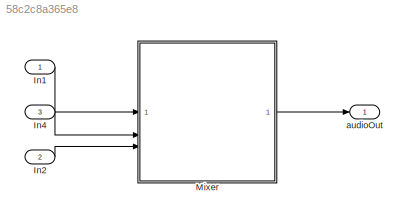
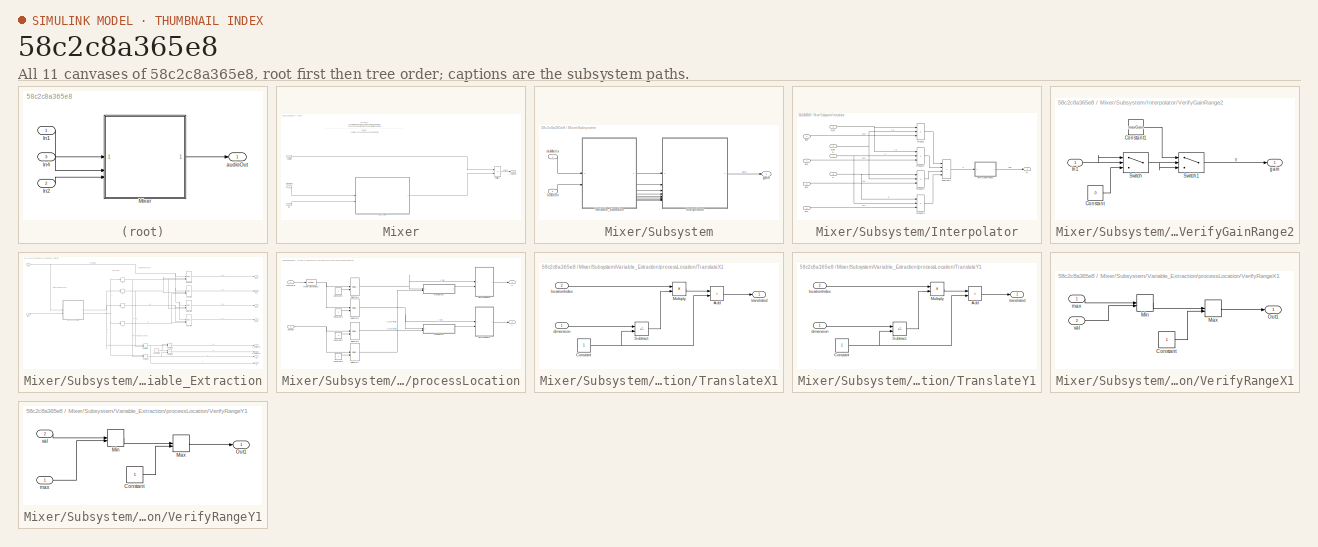
[diagram: thumbnail index - all 11 canvases of the model, root first then tree order]
MODEL slx_58c2c8a365e8
KIND library
CONFIG AbsTol = auto
CONFIG EnableMultiTasking = off
CONFIG FixedStep = auto
CONFIG MaxStep = auto
CONFIG MinStep = auto
CONFIG RelTol = 1e-3
CONFIG SampleTimeConstraint = Unconstrained
CONFIG SolverName = VariableStepAuto
CONFIG StartTime = 0.0
CONFIG StopTime = 10.0
BLOCK [Inport] In1
BLOCK [Inport] In2
  Port = 2
BLOCK [Inport] In4
  Port = 3
BLOCK [SubSystem] Mixer
BLOCK [Inport] Mixer/AudioIn
  OutDataTypeStr = single
BLOCK [Outport] Mixer/AudioOut
  VectorParamsAs1DForOutWhenUnconnected = off
BLOCK [Product] Mixer/Multiply1
  OutDataTypeStr = single
BLOCK [SubSystem] Mixer/Subsystem
BLOCK [SubSystem] Mixer/Subsystem/Interpolator
BLOCK [Product] Mixer/Subsystem/Interpolator/Product
  Inputs = 3
  OutDataTypeStr = single
BLOCK [Product] Mixer/Subsystem/Interpolator/Product1
  Inputs = 3
  OutDataTypeStr = single
BLOCK [Product] Mixer/Subsystem/Interpolator/Product2
  Inputs = 3
  OutDataTypeStr = single
BLOCK [Product] Mixer/Subsystem/Interpolator/Product3
  Inputs = 3
  OutDataTypeStr = single
BLOCK [Sum] Mixer/Subsystem/Interpolator/Subtract4
  IconShape = rectangular
  Inputs = ++++
  OutDataTypeStr = single
BLOCK [SubSystem] Mixer/Subsystem/Interpolator/VerifyGainRange2
BLOCK [Constant] Mixer/Subsystem/Interpolator/VerifyGainRange2/Constant
  Value = 0
BLOCK [Constant] Mixer/Subsystem/Interpolator/VerifyGainRange2/Constant1
  Value = maxGain
BLOCK [Inport] Mixer/Subsystem/Interpolator/VerifyGainRange2/In1
BLOCK [Switch] Mixer/Subsystem/Interpolator/VerifyGainRange2/Switch
  InputSameDT = off
  SaturateOnIntegerOverflow = off
BLOCK [Switch] Mixer/Subsystem/Interpolator/VerifyGainRange2/Switch1
  Criteria = u2 > Threshold
  InputSameDT = off
  SaturateOnIntegerOverflow = off
  Threshold = maxGain
BLOCK [Outport] Mixer/Subsystem/Interpolator/VerifyGainRange2/gain
  VectorParamsAs1DForOutWhenUnconnected = off
BLOCK [Inport] Mixer/Subsystem/Interpolator/a
  Port = 8
BLOCK [Inport] Mixer/Subsystem/Interpolator/a_inv
  Port = 5
BLOCK [Inport] Mixer/Subsystem/Interpolator/b
  Port = 7
BLOCK [Inport] Mixer/Subsystem/Interpolator/b_inv
  Port = 6
BLOCK [Outport] Mixer/Subsystem/Interpolator/g
  VectorParamsAs1DForOutWhenUnconnected = off
BLOCK [Inport] Mixer/Subsystem/Interpolator/g00
BLOCK [Inport] Mixer/Subsystem/Interpolator/g01
  Port = 2
BLOCK [Inport] Mixer/Subsystem/Interpolator/g10
  Port = 3
BLOCK [Inport] Mixer/Subsystem/Interpolator/g11
  Port = 4
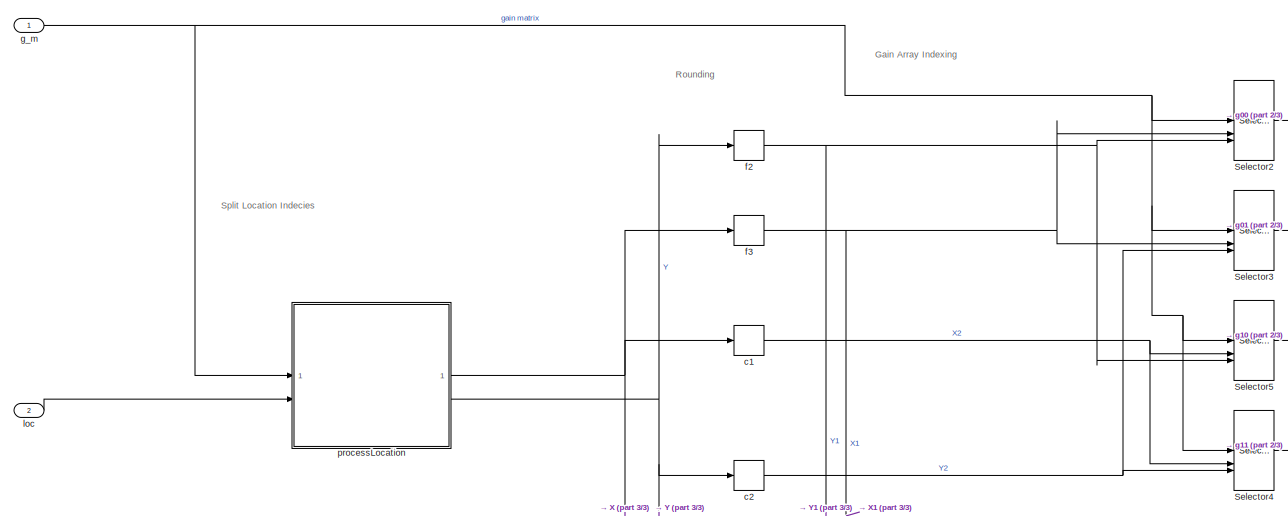
[diagram: Mixer/Subsystem/Variable_Extraction - part 1/3, central region]
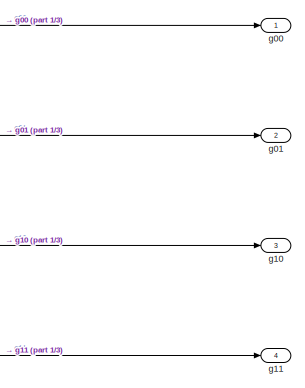
[diagram: Mixer/Subsystem/Variable_Extraction - part 2/3, middle right region]
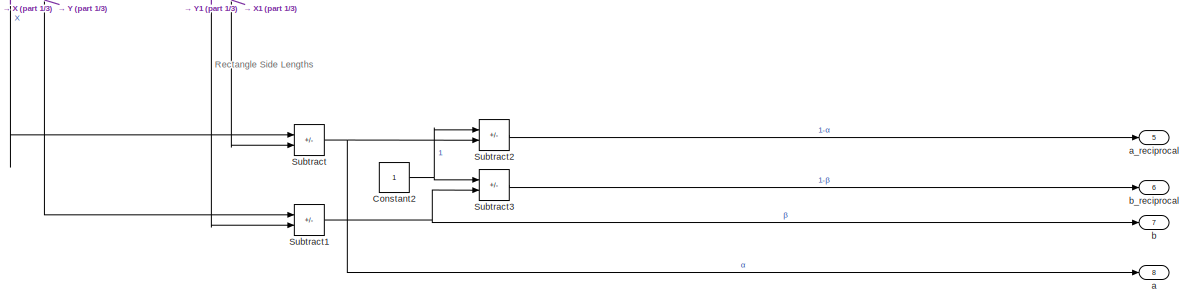
[diagram: Mixer/Subsystem/Variable_Extraction - part 3/3, bottom right region]
BLOCK [SubSystem] Mixer/Subsystem/Variable_Extraction
BLOCK [Constant] Mixer/Subsystem/Variable_Extraction/Constant2
  OutDataTypeStr = single
BLOCK [Selector] Mixer/Subsystem/Variable_Extraction/Selector2
  IndexOptions = Index vector (port),Index vector (port)
  Indices = [1 3],1
  InputPortWidth = 2
  NumberOfDimensions = 2
  OutputSizes = 1,1
BLOCK [Selector] Mixer/Subsystem/Variable_Extraction/Selector3
  IndexOptions = Index vector (port),Index vector (port)
  Indices = [1 3],1
  InputPortWidth = 2
  NumberOfDimensions = 2
  OutputSizes = 1,1
BLOCK [Selector] Mixer/Subsystem/Variable_Extraction/Selector4
  IndexOptions = Index vector (port),Index vector (port)
  Indices = [1 3],1
  InputPortWidth = 2
  NumberOfDimensions = 2
  OutputSizes = 1,1
BLOCK [Selector] Mixer/Subsystem/Variable_Extraction/Selector5
  IndexOptions = Index vector (port),Index vector (port)
  Indices = [1 3],1
  InputPortWidth = 2
  NumberOfDimensions = 2
  OutputSizes = 1,1
BLOCK [Sum] Mixer/Subsystem/Variable_Extraction/Subtract
  IconShape = rectangular
  Inputs = +-
  OutDataTypeStr = single
BLOCK [Sum] Mixer/Subsystem/Variable_Extraction/Subtract1
  IconShape = rectangular
  Inputs = +-
  OutDataTypeStr = single
BLOCK [Sum] Mixer/Subsystem/Variable_Extraction/Subtract2
  IconShape = rectangular
  Inputs = +-
  OutDataTypeStr = single
BLOCK [Sum] Mixer/Subsystem/Variable_Extraction/Subtract3
  IconShape = rectangular
  Inputs = +-
  OutDataTypeStr = single
BLOCK [Outport] Mixer/Subsystem/Variable_Extraction/a
  Port = 8
  VectorParamsAs1DForOutWhenUnconnected = off
BLOCK [Outport] Mixer/Subsystem/Variable_Extraction/a_reciprocal
  Port = 5
  VectorParamsAs1DForOutWhenUnconnected = off
BLOCK [Outport] Mixer/Subsystem/Variable_Extraction/b
  Port = 7
  VectorParamsAs1DForOutWhenUnconnected = off
BLOCK [Outport] Mixer/Subsystem/Variable_Extraction/b_reciprocal
  Port = 6
  VectorParamsAs1DForOutWhenUnconnected = off
BLOCK [Rounding] Mixer/Subsystem/Variable_Extraction/c1
  Operator = ceil
BLOCK [Rounding] Mixer/Subsystem/Variable_Extraction/c2 
  Operator = ceil
BLOCK [Rounding] Mixer/Subsystem/Variable_Extraction/f2
BLOCK [Rounding] Mixer/Subsystem/Variable_Extraction/f3
BLOCK [Outport] Mixer/Subsystem/Variable_Extraction/g00
  VectorParamsAs1DForOutWhenUnconnected = off
BLOCK [Outport] Mixer/Subsystem/Variable_Extraction/g01
  Port = 2
  VectorParamsAs1DForOutWhenUnconnected = off
BLOCK [Outport] Mixer/Subsystem/Variable_Extraction/g10
  Port = 3
  VectorParamsAs1DForOutWhenUnconnected = off
BLOCK [Outport] Mixer/Subsystem/Variable_Extraction/g11
  Port = 4
  VectorParamsAs1DForOutWhenUnconnected = off
BLOCK [Inport] Mixer/Subsystem/Variable_Extraction/g_m
  OutDataTypeStr = single
BLOCK [Inport] Mixer/Subsystem/Variable_Extraction/loc
  Port = 2
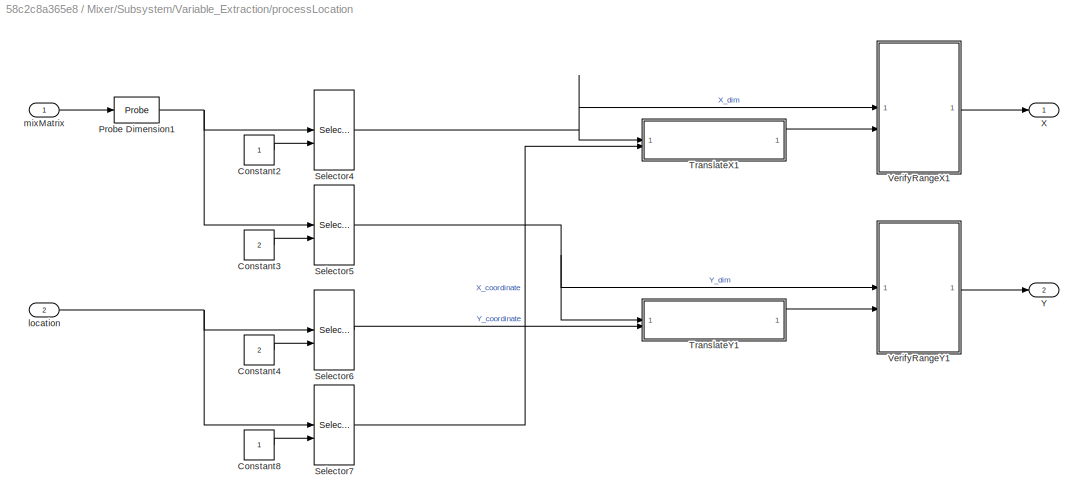
BLOCK [SubSystem] Mixer/Subsystem/Variable_Extraction/processLocation
BLOCK [Constant] Mixer/Subsystem/Variable_Extraction/processLocation/Constant2
  OutDataTypeStr = single
BLOCK [Constant] Mixer/Subsystem/Variable_Extraction/processLocation/Constant3
  OutDataTypeStr = single
  Value = 2
BLOCK [Constant] Mixer/Subsystem/Variable_Extraction/processLocation/Constant4
  OutDataTypeStr = single
  Value = 2
BLOCK [Constant] Mixer/Subsystem/Variable_Extraction/processLocation/Constant8
  OutDataTypeStr = single
BLOCK [Probe] Mixer/Subsystem/Variable_Extraction/processLocation/Probe Dimension1
  ProbeComplexSignal = off
  ProbeSampleTime = off
  ProbeSignalDimensions = on
  ProbeWidth = off
BLOCK [Selector] Mixer/Subsystem/Variable_Extraction/processLocation/Selector4
  IndexOptions = Index vector (port)
  Indices = [1 3]
  InputPortWidth = 2
  OutputSizes = 1
BLOCK [Selector] Mixer/Subsystem/Variable_Extraction/processLocation/Selector5
  IndexOptions = Index vector (port)
  Indices = [1 3]
  InputPortWidth = 2
  OutputSizes = 1
BLOCK [Selector] Mixer/Subsystem/Variable_Extraction/processLocation/Selector6
  IndexOptions = Index vector (port)
  Indices = [1 3]
  InputPortWidth = 2
  OutputSizes = 1
BLOCK [Selector] Mixer/Subsystem/Variable_Extraction/processLocation/Selector7
  IndexOptions = Index vector (port)
  Indices = [1 3]
  InputPortWidth = 2
  OutputSizes = 1
BLOCK [SubSystem] Mixer/Subsystem/Variable_Extraction/processLocation/TranslateX1
BLOCK [Sum] Mixer/Subsystem/Variable_Extraction/processLocation/TranslateX1/Add
  IconShape = rectangular
BLOCK [Constant] Mixer/Subsystem/Variable_Extraction/processLocation/TranslateX1/Constant
BLOCK [Product] Mixer/Subsystem/Variable_Extraction/processLocation/TranslateX1/Multiply
BLOCK [Sum] Mixer/Subsystem/Variable_Extraction/processLocation/TranslateX1/Subtract
  IconShape = rectangular
  Inputs = +-
BLOCK [Inport] Mixer/Subsystem/Variable_Extraction/processLocation/TranslateX1/dimension
BLOCK [Inport] Mixer/Subsystem/Variable_Extraction/processLocation/TranslateX1/locationIndex
  Port = 2
BLOCK [Outport] Mixer/Subsystem/Variable_Extraction/processLocation/TranslateX1/translated
  VectorParamsAs1DForOutWhenUnconnected = off
BLOCK [SubSystem] Mixer/Subsystem/Variable_Extraction/processLocation/TranslateY1
BLOCK [Sum] Mixer/Subsystem/Variable_Extraction/processLocation/TranslateY1/Add
  IconShape = rectangular
BLOCK [Constant] Mixer/Subsystem/Variable_Extraction/processLocation/TranslateY1/Constant
BLOCK [Product] Mixer/Subsystem/Variable_Extraction/processLocation/TranslateY1/Multiply
BLOCK [Sum] Mixer/Subsystem/Variable_Extraction/processLocation/TranslateY1/Subtract
  IconShape = rectangular
  Inputs = +-
BLOCK [Inport] Mixer/Subsystem/Variable_Extraction/processLocation/TranslateY1/dimension
BLOCK [Inport] Mixer/Subsystem/Variable_Extraction/processLocation/TranslateY1/locationIndex
  Port = 2
BLOCK [Outport] Mixer/Subsystem/Variable_Extraction/processLocation/TranslateY1/translated
  VectorParamsAs1DForOutWhenUnconnected = off
BLOCK [SubSystem] Mixer/Subsystem/Variable_Extraction/processLocation/VerifyRangeX1
BLOCK [Constant] Mixer/Subsystem/Variable_Extraction/processLocation/VerifyRangeX1/Constant
BLOCK [MinMax] Mixer/Subsystem/Variable_Extraction/processLocation/VerifyRangeX1/Max
  Function = max
  Inputs = 2
BLOCK [MinMax] Mixer/Subsystem/Variable_Extraction/processLocation/VerifyRangeX1/Min
  Inputs = 2
BLOCK [Outport] Mixer/Subsystem/Variable_Extraction/processLocation/VerifyRangeX1/Out1
  VectorParamsAs1DForOutWhenUnconnected = off
BLOCK [Inport] Mixer/Subsystem/Variable_Extraction/processLocation/VerifyRangeX1/max
BLOCK [Inport] Mixer/Subsystem/Variable_Extraction/processLocation/VerifyRangeX1/val
  Port = 2
BLOCK [SubSystem] Mixer/Subsystem/Variable_Extraction/processLocation/VerifyRangeY1
BLOCK [Constant] Mixer/Subsystem/Variable_Extraction/processLocation/VerifyRangeY1/Constant
BLOCK [MinMax] Mixer/Subsystem/Variable_Extraction/processLocation/VerifyRangeY1/Max
  Function = max
  Inputs = 2
BLOCK [MinMax] Mixer/Subsystem/Variable_Extraction/processLocation/VerifyRangeY1/Min
  Inputs = 2
BLOCK [Outport] Mixer/Subsystem/Variable_Extraction/processLocation/VerifyRangeY1/Out1
  VectorParamsAs1DForOutWhenUnconnected = off
BLOCK [Inport] Mixer/Subsystem/Variable_Extraction/processLocation/VerifyRangeY1/max
BLOCK [Inport] Mixer/Subsystem/Variable_Extraction/processLocation/VerifyRangeY1/val
  Port = 2
BLOCK [Outport] Mixer/Subsystem/Variable_Extraction/processLocation/X
  VectorParamsAs1DForOutWhenUnconnected = off
BLOCK [Outport] Mixer/Subsystem/Variable_Extraction/processLocation/Y
  Port = 2
  VectorParamsAs1DForOutWhenUnconnected = off
BLOCK [Inport] Mixer/Subsystem/Variable_Extraction/processLocation/location
  Port = 2
BLOCK [Inport] Mixer/Subsystem/Variable_Extraction/processLocation/mixMatrix
BLOCK [Outport] Mixer/Subsystem/gain
  VectorParamsAs1DForOutWhenUnconnected = off
BLOCK [Inport] Mixer/Subsystem/location
  Port = 2
BLOCK [Inport] Mixer/Subsystem/mixMatrix
BLOCK [Inport] Mixer/gainMatrix
  Port = 2
BLOCK [Inport] Mixer/loc
  Port = 3
BLOCK [Outport] audioOut
  VectorParamsAs1DForOutWhenUnconnected = off
ANNOTATION Mixer: Purpose: This Simulink block interpolates a gain from a matrix based on an input location and applies it to input audio -------------------------------------------------------------------------------- Inputs: AudioIn - 2 channel announcement audio g_m - gain matrix (tune overlay parameter) Loc - location of announcement to interpolate gain from -----------------------------------------------------...<+150ch>
ANNOTATION Mixer/Subsystem/Variable_Extraction: Gain Array Indexing
ANNOTATION Mixer/Subsystem/Variable_Extraction: Rectangle Side Lengths
ANNOTATION Mixer/Subsystem/Variable_Extraction: Rounding
ANNOTATION Mixer/Subsystem/Variable_Extraction: Split Location Indecies
LINE In1:1 -> Mixer:1
LINE In2:1 -> Mixer:3
LINE In4:1 -> Mixer:2
LINE Mixer/AudioIn:1 -> Mixer/Multiply1:1
LINE Mixer/Multiply1:1 -> Mixer/AudioOut:1
LINE Mixer/Subsystem/Interpolator/Product1:1 -> Mixer/Subsystem/Interpolator/Subtract4:2
LINE Mixer/Subsystem/Interpolator/Product2:1 -> Mixer/Subsystem/Interpolator/Subtract4:3
LINE Mixer/Subsystem/Interpolator/Product3:1 -> Mixer/Subsystem/Interpolator/Subtract4:4
LINE Mixer/Subsystem/Interpolator/Product:1 -> Mixer/Subsystem/Interpolator/Subtract4:1
LINE Mixer/Subsystem/Interpolator/Subtract4:1 -> Mixer/Subsystem/Interpolator/VerifyGainRange2:1
LINE Mixer/Subsystem/Interpolator/VerifyGainRange2/Constant1:1 -> Mixer/Subsystem/Interpolator/VerifyGainRange2/Switch1:1
LINE Mixer/Subsystem/Interpolator/VerifyGainRange2/Constant:1 -> Mixer/Subsystem/Interpolator/VerifyGainRange2/Switch:3
NET Mixer/Subsystem/Interpolator/VerifyGainRange2/In1:1 -> Mixer/Subsystem/Interpolator/VerifyGainRange2/Switch:1, Mixer/Subsystem/Interpolator/VerifyGainRange2/Switch:2
LINE Mixer/Subsystem/Interpolator/VerifyGainRange2/Switch1:1 -> Mixer/Subsystem/Interpolator/VerifyGainRange2/gain:1
NET Mixer/Subsystem/Interpolator/VerifyGainRange2/Switch:1 -> Mixer/Subsystem/Interpolator/VerifyGainRange2/Switch1:2, Mixer/Subsystem/Interpolator/VerifyGainRange2/Switch1:3
LINE Mixer/Subsystem/Interpolator/VerifyGainRange2:1 -> Mixer/Subsystem/Interpolator/g:1
NET Mixer/Subsystem/Interpolator/a:1 -> Mixer/Subsystem/Interpolator/Product2:1, Mixer/Subsystem/Interpolator/Product3:1
NET Mixer/Subsystem/Interpolator/a_inv:1 -> Mixer/Subsystem/Interpolator/Product1:1, Mixer/Subsystem/Interpolator/Product:1
NET Mixer/Subsystem/Interpolator/b:1 -> Mixer/Subsystem/Interpolator/Product1:2, Mixer/Subsystem/Interpolator/Product3:2
NET Mixer/Subsystem/Interpolator/b_inv:1 -> Mixer/Subsystem/Interpolator/Product2:2, Mixer/Subsystem/Interpolator/Product:2
LINE Mixer/Subsystem/Interpolator/g00:1 -> Mixer/Subsystem/Interpolator/Product:3
LINE Mixer/Subsystem/Interpolator/g01:1 -> Mixer/Subsystem/Interpolator/Product1:3
LINE Mixer/Subsystem/Interpolator/g10:1 -> Mixer/Subsystem/Interpolator/Product2:3
LINE Mixer/Subsystem/Interpolator/g11:1 -> Mixer/Subsystem/Interpolator/Product3:3
LINE Mixer/Subsystem/Interpolator:1 -> Mixer/Subsystem/gain:1
NET Mixer/Subsystem/Variable_Extraction/Constant2:1 -> Mixer/Subsystem/Variable_Extraction/Subtract2:1, Mixer/Subsystem/Variable_Extraction/Subtract3:1
LINE Mixer/Subsystem/Variable_Extraction/Selector2:1 -> Mixer/Subsystem/Variable_Extraction/g00:1
LINE Mixer/Subsystem/Variable_Extraction/Selector3:1 -> Mixer/Subsystem/Variable_Extraction/g01:1
LINE Mixer/Subsystem/Variable_Extraction/Selector4:1 -> Mixer/Subsystem/Variable_Extraction/g11:1
LINE Mixer/Subsystem/Variable_Extraction/Selector5:1 -> Mixer/Subsystem/Variable_Extraction/g10:1
NET Mixer/Subsystem/Variable_Extraction/Subtract1:1 -> Mixer/Subsystem/Variable_Extraction/Subtract3:2, Mixer/Subsystem/Variable_Extraction/b:1
LINE Mixer/Subsystem/Variable_Extraction/Subtract2:1 -> Mixer/Subsystem/Variable_Extraction/a_reciprocal:1
LINE Mixer/Subsystem/Variable_Extraction/Subtract3:1 -> Mixer/Subsystem/Variable_Extraction/b_reciprocal:1
NET Mixer/Subsystem/Variable_Extraction/Subtract:1 -> Mixer/Subsystem/Variable_Extraction/Subtract2:2, Mixer/Subsystem/Variable_Extraction/a:1
NET Mixer/Subsystem/Variable_Extraction/c1:1 -> Mixer/Subsystem/Variable_Extraction/Selector4:2, Mixer/Subsystem/Variable_Extraction/Selector5:2
NET Mixer/Subsystem/Variable_Extraction/c2 :1 -> Mixer/Subsystem/Variable_Extraction/Selector3:3, Mixer/Subsystem/Variable_Extraction/Selector4:3
NET Mixer/Subsystem/Variable_Extraction/f2:1 -> Mixer/Subsystem/Variable_Extraction/Selector2:3, Mixer/Subsystem/Variable_Extraction/Selector5:3, Mixer/Subsystem/Variable_Extraction/Subtract1:2
NET Mixer/Subsystem/Variable_Extraction/f3:1 -> Mixer/Subsystem/Variable_Extraction/Selector2:2, Mixer/Subsystem/Variable_Extraction/Selector3:2, Mixer/Subsystem/Variable_Extraction/Subtract:2
NET Mixer/Subsystem/Variable_Extraction/g_m:1 -> Mixer/Subsystem/Variable_Extraction/Selector2:1, Mixer/Subsystem/Variable_Extraction/Selector3:1, Mixer/Subsystem/Variable_Extraction/Selector4:1, Mixer/Subsystem/Variable_Extraction/Selector5:1, Mixer/Subsystem/Variable_Extraction/processLocation:1
LINE Mixer/Subsystem/Variable_Extraction/loc:1 -> Mixer/Subsystem/Variable_Extraction/processLocation:2
LINE Mixer/Subsystem/Variable_Extraction/processLocation/Constant2:1 -> Mixer/Subsystem/Variable_Extraction/processLocation/Selector4:2
LINE Mixer/Subsystem/Variable_Extraction/processLocation/Constant3:1 -> Mixer/Subsystem/Variable_Extraction/processLocation/Selector5:2
LINE Mixer/Subsystem/Variable_Extraction/processLocation/Constant4:1 -> Mixer/Subsystem/Variable_Extraction/processLocation/Selector6:2
LINE Mixer/Subsystem/Variable_Extraction/processLocation/Constant8:1 -> Mixer/Subsystem/Variable_Extraction/processLocation/Selector7:2
NET Mixer/Subsystem/Variable_Extraction/processLocation/Probe Dimension1:1 -> Mixer/Subsystem/Variable_Extraction/processLocation/Selector4:1, Mixer/Subsystem/Variable_Extraction/processLocation/Selector5:1
NET Mixer/Subsystem/Variable_Extraction/processLocation/Selector4:1 -> Mixer/Subsystem/Variable_Extraction/processLocation/TranslateX1:1, Mixer/Subsystem/Variable_Extraction/processLocation/VerifyRangeX1:1
NET Mixer/Subsystem/Variable_Extraction/processLocation/Selector5:1 -> Mixer/Subsystem/Variable_Extraction/processLocation/TranslateY1:1, Mixer/Subsystem/Variable_Extraction/processLocation/VerifyRangeY1:1
LINE Mixer/Subsystem/Variable_Extraction/processLocation/Selector6:1 -> Mixer/Subsystem/Variable_Extraction/processLocation/TranslateY1:2
LINE Mixer/Subsystem/Variable_Extraction/processLocation/Selector7:1 -> Mixer/Subsystem/Variable_Extraction/processLocation/TranslateX1:2
LINE Mixer/Subsystem/Variable_Extraction/processLocation/TranslateX1/Add:1 -> Mixer/Subsystem/Variable_Extraction/processLocation/TranslateX1/translated:1
NET Mixer/Subsystem/Variable_Extraction/processLocation/TranslateX1/Constant:1 -> Mixer/Subsystem/Variable_Extraction/processLocation/TranslateX1/Add:2, Mixer/Subsystem/Variable_Extraction/processLocation/TranslateX1/Subtract:2
LINE Mixer/Subsystem/Variable_Extraction/processLocation/TranslateX1/Multiply:1 -> Mixer/Subsystem/Variable_Extraction/processLocation/TranslateX1/Add:1
LINE Mixer/Subsystem/Variable_Extraction/processLocation/TranslateX1/Subtract:1 -> Mixer/Subsystem/Variable_Extraction/processLocation/TranslateX1/Multiply:2
LINE Mixer/Subsystem/Variable_Extraction/processLocation/TranslateX1/dimension:1 -> Mixer/Subsystem/Variable_Extraction/processLocation/TranslateX1/Subtract:1
LINE Mixer/Subsystem/Variable_Extraction/processLocation/TranslateX1/locationIndex:1 -> Mixer/Subsystem/Variable_Extraction/processLocation/TranslateX1/Multiply:1
LINE Mixer/Subsystem/Variable_Extraction/processLocation/TranslateX1:1 -> Mixer/Subsystem/Variable_Extraction/processLocation/VerifyRangeX1:2
LINE Mixer/Subsystem/Variable_Extraction/processLocation/TranslateY1/Add:1 -> Mixer/Subsystem/Variable_Extraction/processLocation/TranslateY1/translated:1
NET Mixer/Subsystem/Variable_Extraction/processLocation/TranslateY1/Constant:1 -> Mixer/Subsystem/Variable_Extraction/processLocation/TranslateY1/Add:2, Mixer/Subsystem/Variable_Extraction/processLocation/TranslateY1/Subtract:2
LINE Mixer/Subsystem/Variable_Extraction/processLocation/TranslateY1/Multiply:1 -> Mixer/Subsystem/Variable_Extraction/processLocation/TranslateY1/Add:1
LINE Mixer/Subsystem/Variable_Extraction/processLocation/TranslateY1/Subtract:1 -> Mixer/Subsystem/Variable_Extraction/processLocation/TranslateY1/Multiply:2
LINE Mixer/Subsystem/Variable_Extraction/processLocation/TranslateY1/dimension:1 -> Mixer/Subsystem/Variable_Extraction/processLocation/TranslateY1/Subtract:1
LINE Mixer/Subsystem/Variable_Extraction/processLocation/TranslateY1/locationIndex:1 -> Mixer/Subsystem/Variable_Extraction/processLocation/TranslateY1/Multiply:1
LINE Mixer/Subsystem/Variable_Extraction/processLocation/TranslateY1:1 -> Mixer/Subsystem/Variable_Extraction/processLocation/VerifyRangeY1:2
LINE Mixer/Subsystem/Variable_Extraction/processLocation/VerifyRangeX1/Constant:1 -> Mixer/Subsystem/Variable_Extraction/processLocation/VerifyRangeX1/Max:2
LINE Mixer/Subsystem/Variable_Extraction/processLocation/VerifyRangeX1/Max:1 -> Mixer/Subsystem/Variable_Extraction/processLocation/VerifyRangeX1/Out1:1
LINE Mixer/Subsystem/Variable_Extraction/processLocation/VerifyRangeX1/Min:1 -> Mixer/Subsystem/Variable_Extraction/processLocation/VerifyRangeX1/Max:1
LINE Mixer/Subsystem/Variable_Extraction/processLocation/VerifyRangeX1/max:1 -> Mixer/Subsystem/Variable_Extraction/processLocation/VerifyRangeX1/Min:1
LINE Mixer/Subsystem/Variable_Extraction/processLocation/VerifyRangeX1/val:1 -> Mixer/Subsystem/Variable_Extraction/processLocation/VerifyRangeX1/Min:2
LINE Mixer/Subsystem/Variable_Extraction/processLocation/VerifyRangeX1:1 -> Mixer/Subsystem/Variable_Extraction/processLocation/X:1
LINE Mixer/Subsystem/Variable_Extraction/processLocation/VerifyRangeY1/Constant:1 -> Mixer/Subsystem/Variable_Extraction/processLocation/VerifyRangeY1/Max:2
LINE Mixer/Subsystem/Variable_Extraction/processLocation/VerifyRangeY1/Max:1 -> Mixer/Subsystem/Variable_Extraction/processLocation/VerifyRangeY1/Out1:1
LINE Mixer/Subsystem/Variable_Extraction/processLocation/VerifyRangeY1/Min:1 -> Mixer/Subsystem/Variable_Extraction/processLocation/VerifyRangeY1/Max:1
LINE Mixer/Subsystem/Variable_Extraction/processLocation/VerifyRangeY1/max:1 -> Mixer/Subsystem/Variable_Extraction/processLocation/VerifyRangeY1/Min:2
LINE Mixer/Subsystem/Variable_Extraction/processLocation/VerifyRangeY1/val:1 -> Mixer/Subsystem/Variable_Extraction/processLocation/VerifyRangeY1/Min:1
LINE Mixer/Subsystem/Variable_Extraction/processLocation/VerifyRangeY1:1 -> Mixer/Subsystem/Variable_Extraction/processLocation/Y:1
NET Mixer/Subsystem/Variable_Extraction/processLocation/location:1 -> Mixer/Subsystem/Variable_Extraction/processLocation/Selector6:1, Mixer/Subsystem/Variable_Extraction/processLocation/Selector7:1
LINE Mixer/Subsystem/Variable_Extraction/processLocation/mixMatrix:1 -> Mixer/Subsystem/Variable_Extraction/processLocation/Probe Dimension1:1
NET Mixer/Subsystem/Variable_Extraction/processLocation:1 -> Mixer/Subsystem/Variable_Extraction/Subtract:1, Mixer/Subsystem/Variable_Extraction/c1:1, Mixer/Subsystem/Variable_Extraction/f3:1
NET Mixer/Subsystem/Variable_Extraction/processLocation:2 -> Mixer/Subsystem/Variable_Extraction/Subtract1:1, Mixer/Subsystem/Variable_Extraction/c2 :1, Mixer/Subsystem/Variable_Extraction/f2:1
LINE Mixer/Subsystem/Variable_Extraction:1 -> Mixer/Subsystem/Interpolator:1
LINE Mixer/Subsystem/Variable_Extraction:2 -> Mixer/Subsystem/Interpolator:2
LINE Mixer/Subsystem/Variable_Extraction:3 -> Mixer/Subsystem/Interpolator:3
LINE Mixer/Subsystem/Variable_Extraction:4 -> Mixer/Subsystem/Interpolator:4
LINE Mixer/Subsystem/Variable_Extraction:5 -> Mixer/Subsystem/Interpolator:5
LINE Mixer/Subsystem/Variable_Extraction:6 -> Mixer/Subsystem/Interpolator:6
LINE Mixer/Subsystem/Variable_Extraction:7 -> Mixer/Subsystem/Interpolator:7
LINE Mixer/Subsystem/Variable_Extraction:8 -> Mixer/Subsystem/Interpolator:8
LINE Mixer/Subsystem/location:1 -> Mixer/Subsystem/Variable_Extraction:2
LINE Mixer/Subsystem/mixMatrix:1 -> Mixer/Subsystem/Variable_Extraction:1
LINE Mixer/Subsystem:1 -> Mixer/Multiply1:2
LINE Mixer/gainMatrix:1 -> Mixer/Subsystem:1
LINE Mixer/loc:1 -> Mixer/Subsystem:2
LINE Mixer:1 -> audioOut:1
note: NET lines group one-source signal fan-out (src -> all destinations, sorted); 1:1 wires keep LINE
